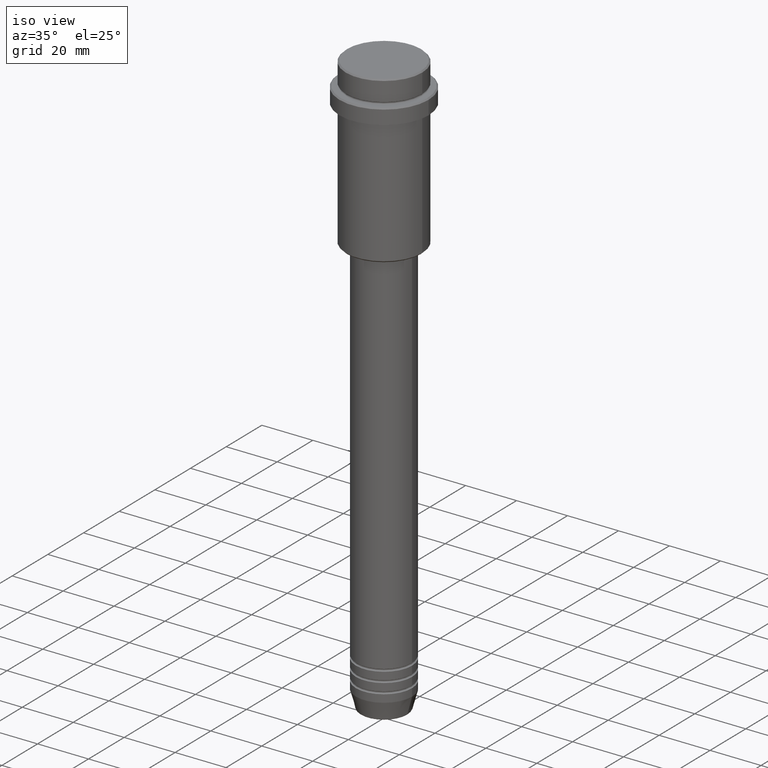
[diagram: clean part render]
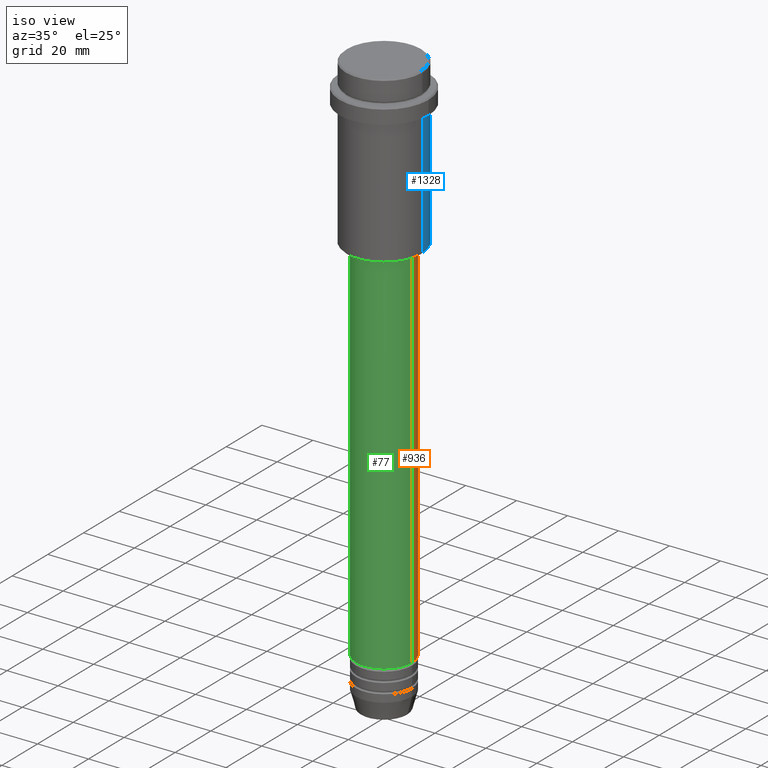
[diagram: same view with three faces highlighted in distinct colors, each labeled with its STEP entity id]
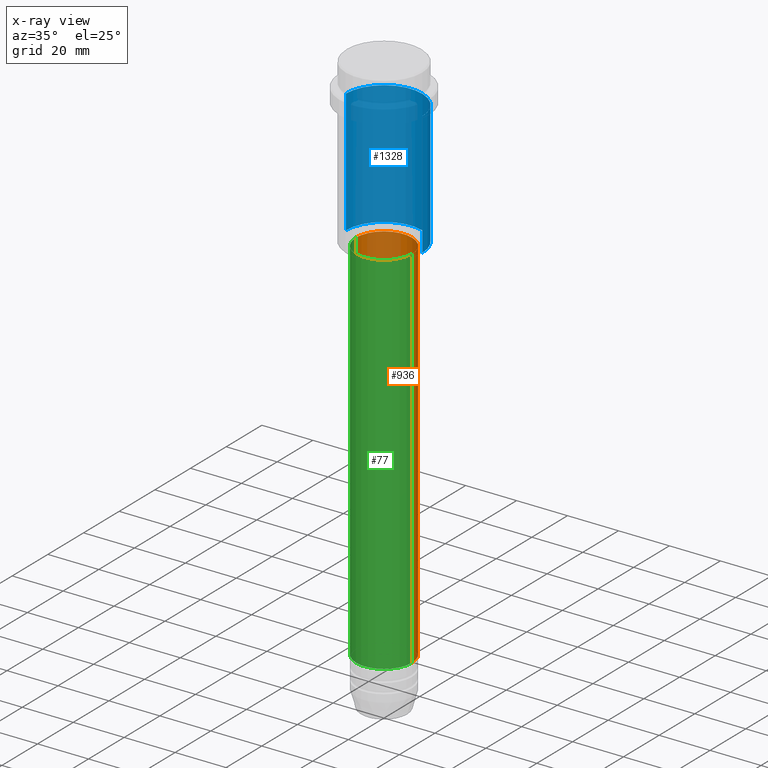
[diagram: x-ray of the same camera — body ghosted, the three highlighted faces saturated]
A machine part, iso view with three faces highlighted in distinct colors.
The next image is the same camera in x-ray (body ghosted, the three faces saturated) — at least one of them is partly hidden behind the body in this view.
Their STEP definitions:

[orange] entity #936 — the highlighted cylindrical surface (edge-blend (fillet) strip) has radius 11 mm, axis along (-0, -0, 1).
#20 = VECTOR ( 'NONE', #75, 1000.000000000000000 ) ;
#53 = VERTEX_POINT ( 'NONE', #304 ) ;
#75 = DIRECTION ( 'NONE',  ( -0.000000000000000000, -0.000000000000000000, 1.000000000000000000 ) ) ;
#93 = CYLINDRICAL_SURFACE ( 'NONE', #857, 11.00000000000000000 ) ;
#96 = EDGE_CURVE ( 'NONE', #362, #991, #1319, .T. ) ;
#148 = CARTESIAN_POINT ( 'NONE',  ( 0.000000000000000000, 0.000000000000000000, -66.00000000000000000 ) ) ;
#180 = ORIENTED_EDGE ( 'NONE', *, *, #354, .F. ) ;
#181 = DIRECTION ( 'NONE',  ( -0.000000000000000000, -0.000000000000000000, 1.000000000000000000 ) ) ;
#188 = LINE ( 'NONE', #831, #20 ) ;
#246 = AXIS2_PLACEMENT_3D ( 'NONE', #148, #466, #363 ) ;
#251 = AXIS2_PLACEMENT_3D ( 'NONE', #750, #181, #1172 ) ;
#304 = CARTESIAN_POINT ( 'NONE',  ( -10.99999999999999822, 1.347111479062088207E-15, -66.00000000000000000 ) ) ;
#354 = EDGE_CURVE ( 'NONE', #621, #53, #1389, .T. ) ;
#362 = VERTEX_POINT ( 'NONE', #1361 ) ;
#363 = DIRECTION ( 'NONE',  ( 1.000000000000000000, 0.000000000000000000, 0.000000000000000000 ) ) ;
#462 = EDGE_LOOP ( 'NONE', ( #894, #913, #180, #604 ) ) ;
#466 = DIRECTION ( 'NONE',  ( -0.000000000000000000, -0.000000000000000000, 1.000000000000000000 ) ) ;
#549 = VECTOR ( 'NONE', #1193, 1000.000000000000000 ) ;
#604 = ORIENTED_EDGE ( 'NONE', *, *, #1088, .F. ) ;
#621 = VERTEX_POINT ( 'NONE', #1393 ) ;
#732 = DIRECTION ( 'NONE',  ( -0.000000000000000000, -0.000000000000000000, 1.000000000000000000 ) ) ;
#741 = CARTESIAN_POINT ( 'NONE',  ( -11.00000000000000000, 1.347111479062088405E-15, -210.9999999999999147 ) ) ;
#750 = CARTESIAN_POINT ( 'NONE',  ( 0.000000000000000000, 0.000000000000000000, -210.9999999999999147 ) ) ;
#827 = DIRECTION ( 'NONE',  ( 1.000000000000000000, 0.000000000000000000, 0.000000000000000000 ) ) ;
#831 = CARTESIAN_POINT ( 'NONE',  ( -11.00000000000000000, 1.347111479062088405E-15, 0.000000000000000000 ) ) ;
#857 = AXIS2_PLACEMENT_3D ( 'NONE', #1292, #732, #827 ) ;
#894 = ORIENTED_EDGE ( 'NONE', *, *, #96, .T. ) ;
#913 = ORIENTED_EDGE ( 'NONE', *, *, #1403, .T. ) ;
#936 = ADVANCED_FACE ( 'NONE', ( #1269 ), #93, .T. ) ;
#989 = CARTESIAN_POINT ( 'NONE',  ( 11.00000000000000000, 0.000000000000000000, 0.000000000000000000 ) ) ;
#991 = VERTEX_POINT ( 'NONE', #741 ) ;
#999 = LINE ( 'NONE', #989, #549 ) ;
#1088 = EDGE_CURVE ( 'NONE', #362, #621, #999, .T. ) ;
#1172 = DIRECTION ( 'NONE',  ( 1.000000000000000000, 0.000000000000000000, 0.000000000000000000 ) ) ;
#1193 = DIRECTION ( 'NONE',  ( -0.000000000000000000, -0.000000000000000000, 1.000000000000000000 ) ) ;
#1269 = FACE_OUTER_BOUND ( 'NONE', #462, .T. ) ;
#1292 = CARTESIAN_POINT ( 'NONE',  ( 0.000000000000000000, 0.000000000000000000, 0.000000000000000000 ) ) ;
#1319 = CIRCLE ( 'NONE', #251, 11.00000000000000000 ) ;
#1361 = CARTESIAN_POINT ( 'NONE',  ( 11.00000000000000000, 0.000000000000000000, -210.9999999999999147 ) ) ;
#1389 = CIRCLE ( 'NONE', #246, 10.99999999999999822 ) ;
#1393 = CARTESIAN_POINT ( 'NONE',  ( 10.99999999999999822, 0.000000000000000000, -66.00000000000000000 ) ) ;
#1403 = EDGE_CURVE ( 'NONE', #991, #53, #188, .T. ) ;

[blue] entity #1328 — the highlighted cylindrical surface (partial cylindrical patch) has radius 15 mm, axis along (-0, -0, 1).
#30 = CARTESIAN_POINT ( 'NONE',  ( 0.000000000000000000, 0.000000000000000000, 0.000000000000000000 ) ) ;
#78 = CARTESIAN_POINT ( 'NONE',  ( -15.00000000000000000, 1.836970198721029589E-15, -64.50000000000004263 ) ) ;
#285 = DIRECTION ( 'NONE',  ( -0.000000000000000000, -0.000000000000000000, 1.000000000000000000 ) ) ;
#330 = CARTESIAN_POINT ( 'NONE',  ( -15.00000000000000000, 1.836970198721029589E-15, 0.000000000000000000 ) ) ;
#380 = ORIENTED_EDGE ( 'NONE', *, *, #695, .T. ) ;
#414 = DIRECTION ( 'NONE',  ( -0.000000000000000000, -0.000000000000000000, 1.000000000000000000 ) ) ;
#445 = LINE ( 'NONE', #882, #646 ) ;
#463 = DIRECTION ( 'NONE',  ( 1.000000000000000000, 0.000000000000000000, 0.000000000000000000 ) ) ;
#484 = FACE_OUTER_BOUND ( 'NONE', #677, .T. ) ;
#489 = VERTEX_POINT ( 'NONE', #941 ) ;
#525 = VERTEX_POINT ( 'NONE', #649 ) ;
#528 = AXIS2_PLACEMENT_3D ( 'NONE', #638, #285, #1275 ) ;
#545 = VERTEX_POINT ( 'NONE', #78 ) ;
#569 = CIRCLE ( 'NONE', #528, 15.00000000000000000 ) ;
#607 = DIRECTION ( 'NONE',  ( -0.000000000000000000, -0.000000000000000000, 1.000000000000000000 ) ) ;
#638 = CARTESIAN_POINT ( 'NONE',  ( 0.000000000000000000, 0.000000000000000000, -64.50000000000004263 ) ) ;
#646 = VECTOR ( 'NONE', #1327, 1000.000000000000000 ) ;
#649 = CARTESIAN_POINT ( 'NONE',  ( 15.00000000000000000, 0.000000000000000000, -64.50000000000004263 ) ) ;
#677 = EDGE_LOOP ( 'NONE', ( #1143, #380, #1047, #1144 ) ) ;
#695 = EDGE_CURVE ( 'NONE', #545, #489, #1318, .T. ) ;
#759 = VECTOR ( 'NONE', #1001, 1000.000000000000000 ) ;
#769 = CARTESIAN_POINT ( 'NONE',  ( 15.00000000000000178, 0.000000000000000000, -16.00000000000000000 ) ) ;
#781 = AXIS2_PLACEMENT_3D ( 'NONE', #1400, #414, #846 ) ;
#846 = DIRECTION ( 'NONE',  ( 1.000000000000000000, 0.000000000000000000, 0.000000000000000000 ) ) ;
#882 = CARTESIAN_POINT ( 'NONE',  ( 15.00000000000000000, 0.000000000000000000, 0.000000000000000000 ) ) ;
#914 = CYLINDRICAL_SURFACE ( 'NONE', #1325, 15.00000000000000000 ) ;
#941 = CARTESIAN_POINT ( 'NONE',  ( -15.00000000000000355, 1.836970198721029983E-15, -16.00000000000000000 ) ) ;
#1001 = DIRECTION ( 'NONE',  ( -0.000000000000000000, -0.000000000000000000, 1.000000000000000000 ) ) ;
#1007 = EDGE_CURVE ( 'NONE', #525, #545, #569, .T. ) ;
#1047 = ORIENTED_EDGE ( 'NONE', *, *, #1057, .F. ) ;
#1057 = EDGE_CURVE ( 'NONE', #1149, #489, #1184, .T. ) ;
#1143 = ORIENTED_EDGE ( 'NONE', *, *, #1007, .T. ) ;
#1144 = ORIENTED_EDGE ( 'NONE', *, *, #1198, .F. ) ;
#1149 = VERTEX_POINT ( 'NONE', #769 ) ;
#1184 = CIRCLE ( 'NONE', #781, 15.00000000000000178 ) ;
#1198 = EDGE_CURVE ( 'NONE', #525, #1149, #445, .T. ) ;
#1275 = DIRECTION ( 'NONE',  ( -1.000000000000000000, 0.000000000000000000, 0.000000000000000000 ) ) ;
#1318 = LINE ( 'NONE', #330, #759 ) ;
#1325 = AXIS2_PLACEMENT_3D ( 'NONE', #30, #607, #463 ) ;
#1327 = DIRECTION ( 'NONE',  ( -0.000000000000000000, -0.000000000000000000, 1.000000000000000000 ) ) ;
#1328 = ADVANCED_FACE ( 'NONE', ( #484 ), #914, .T. ) ;
#1400 = CARTESIAN_POINT ( 'NONE',  ( 0.000000000000000000, 0.000000000000000000, -16.00000000000000000 ) ) ;

[green] entity #77 — the highlighted cylindrical surface (edge-blend (fillet) strip) has radius 11 mm, axis along (-0, -0, 1).
#6 = DIRECTION ( 'NONE',  ( -0.000000000000000000, -0.000000000000000000, 1.000000000000000000 ) ) ;
#10 = ORIENTED_EDGE ( 'NONE', *, *, #1088, .T. ) ;
#20 = VECTOR ( 'NONE', #75, 1000.000000000000000 ) ;
#53 = VERTEX_POINT ( 'NONE', #304 ) ;
#60 = EDGE_CURVE ( 'NONE', #991, #362, #485, .T. ) ;
#75 = DIRECTION ( 'NONE',  ( -0.000000000000000000, -0.000000000000000000, 1.000000000000000000 ) ) ;
#77 = ADVANCED_FACE ( 'NONE', ( #650 ), #309, .T. ) ;
#101 = DIRECTION ( 'NONE',  ( -0.000000000000000000, -0.000000000000000000, 1.000000000000000000 ) ) ;
#188 = LINE ( 'NONE', #831, #20 ) ;
#219 = AXIS2_PLACEMENT_3D ( 'NONE', #421, #737, #1289 ) ;
#252 = ORIENTED_EDGE ( 'NONE', *, *, #60, .T. ) ;
#304 = CARTESIAN_POINT ( 'NONE',  ( -10.99999999999999822, 1.347111479062088207E-15, -66.00000000000000000 ) ) ;
#309 = CYLINDRICAL_SURFACE ( 'NONE', #219, 11.00000000000000000 ) ;
#362 = VERTEX_POINT ( 'NONE', #1361 ) ;
#387 = ORIENTED_EDGE ( 'NONE', *, *, #739, .F. ) ;
#410 = CARTESIAN_POINT ( 'NONE',  ( 0.000000000000000000, 0.000000000000000000, -210.9999999999999147 ) ) ;
#421 = CARTESIAN_POINT ( 'NONE',  ( 0.000000000000000000, 0.000000000000000000, 0.000000000000000000 ) ) ;
#485 = CIRCLE ( 'NONE', #1285, 11.00000000000000000 ) ;
#519 = DIRECTION ( 'NONE',  ( 1.000000000000000000, 0.000000000000000000, 0.000000000000000000 ) ) ;
#549 = VECTOR ( 'NONE', #1193, 1000.000000000000000 ) ;
#621 = VERTEX_POINT ( 'NONE', #1393 ) ;
#650 = FACE_OUTER_BOUND ( 'NONE', #1374, .T. ) ;
#654 = CARTESIAN_POINT ( 'NONE',  ( 0.000000000000000000, 0.000000000000000000, -66.00000000000000000 ) ) ;
#736 = AXIS2_PLACEMENT_3D ( 'NONE', #654, #6, #1103 ) ;
#737 = DIRECTION ( 'NONE',  ( -0.000000000000000000, -0.000000000000000000, 1.000000000000000000 ) ) ;
#739 = EDGE_CURVE ( 'NONE', #53, #621, #1347, .T. ) ;
#741 = CARTESIAN_POINT ( 'NONE',  ( -11.00000000000000000, 1.347111479062088405E-15, -210.9999999999999147 ) ) ;
#831 = CARTESIAN_POINT ( 'NONE',  ( -11.00000000000000000, 1.347111479062088405E-15, 0.000000000000000000 ) ) ;
#892 = ORIENTED_EDGE ( 'NONE', *, *, #1403, .F. ) ;
#989 = CARTESIAN_POINT ( 'NONE',  ( 11.00000000000000000, 0.000000000000000000, 0.000000000000000000 ) ) ;
#991 = VERTEX_POINT ( 'NONE', #741 ) ;
#999 = LINE ( 'NONE', #989, #549 ) ;
#1088 = EDGE_CURVE ( 'NONE', #362, #621, #999, .T. ) ;
#1103 = DIRECTION ( 'NONE',  ( 1.000000000000000000, 0.000000000000000000, 0.000000000000000000 ) ) ;
#1193 = DIRECTION ( 'NONE',  ( -0.000000000000000000, -0.000000000000000000, 1.000000000000000000 ) ) ;
#1285 = AXIS2_PLACEMENT_3D ( 'NONE', #410, #101, #519 ) ;
#1289 = DIRECTION ( 'NONE',  ( 1.000000000000000000, 0.000000000000000000, 0.000000000000000000 ) ) ;
#1347 = CIRCLE ( 'NONE', #736, 10.99999999999999822 ) ;
#1361 = CARTESIAN_POINT ( 'NONE',  ( 11.00000000000000000, 0.000000000000000000, -210.9999999999999147 ) ) ;
#1374 = EDGE_LOOP ( 'NONE', ( #892, #252, #10, #387 ) ) ;
#1393 = CARTESIAN_POINT ( 'NONE',  ( 10.99999999999999822, 0.000000000000000000, -66.00000000000000000 ) ) ;
#1403 = EDGE_CURVE ( 'NONE', #991, #53, #188, .T. ) ;